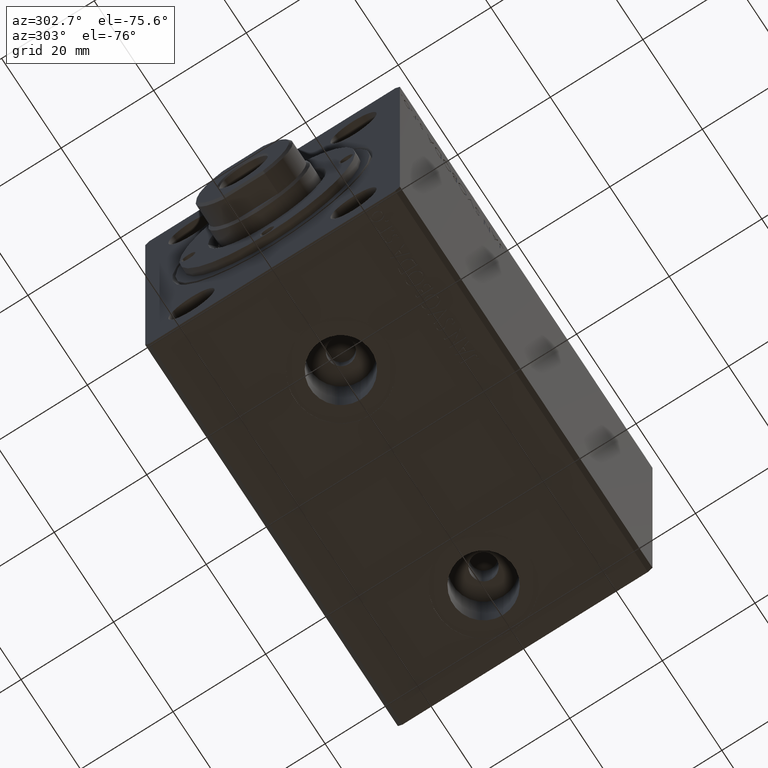
[diagram: clean part render]
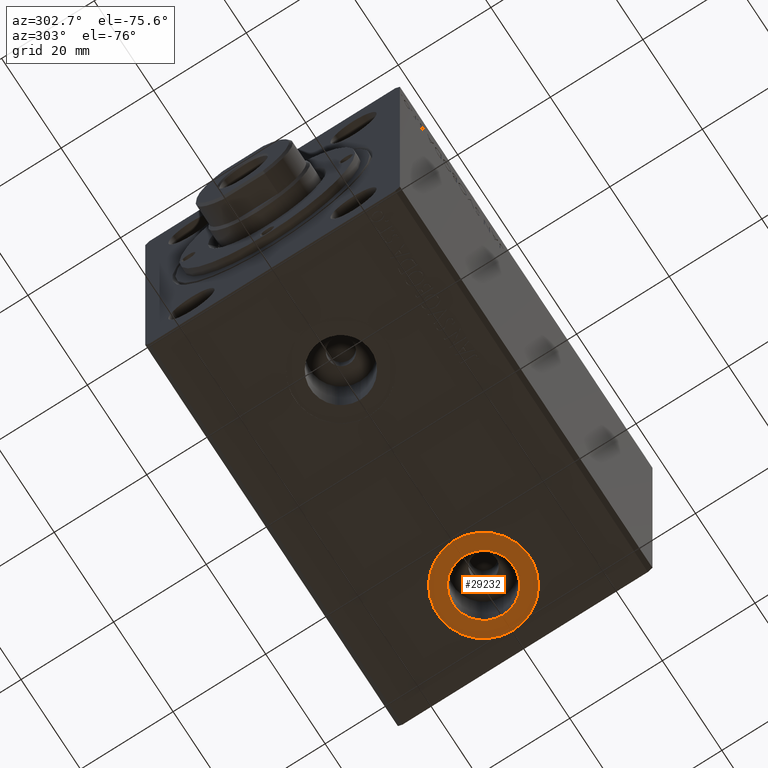
[diagram: same view with one face highlighted and labeled with its STEP entity id]
A machine part, auxiliary view. The second image highlights one B-rep face of the part: STEP entity #29232.
In plain terms, the highlighted planar face has unit normal (0, 0, -1).
Its self-contained STEP definition (entity closure, byte-faithful):
#1874 = CARTESIAN_POINT ( 'NONE',  ( 71.00000000000001421, -1.077874968157985048E-14, -37.39999999999999147 ) ) ;
#2207 = CARTESIAN_POINT ( 'NONE',  ( 61.00000000000000711, -1.077874968157985048E-14, -37.39999999999999147 ) ) ;
#3714 = DIRECTION ( 'NONE',  ( -1.000000000000000000, 0.000000000000000000, 0.000000000000000000 ) ) ;
#4960 = DIRECTION ( 'NONE',  ( -1.000000000000000000, 0.000000000000000000, -0.000000000000000000 ) ) ;
#8561 = CARTESIAN_POINT ( 'NONE',  ( 71.00000000000001421, -1.077874968157985048E-14, -37.39999999999999147 ) ) ;
#8804 = DIRECTION ( 'NONE',  ( 0.000000000000000000, 0.000000000000000000, -1.000000000000000000 ) ) ;
#9032 = DIRECTION ( 'NONE',  ( -1.000000000000000000, 0.000000000000000000, 0.000000000000000000 ) ) ;
#9654 = EDGE_CURVE ( 'NONE', #27562, #28279, #40902, .T. ) ;
#11263 = ORIENTED_EDGE ( 'NONE', *, *, #9654, .T. ) ;
#11489 = CARTESIAN_POINT ( 'NONE',  ( 71.00000000000001421, -1.077874968157985048E-14, -37.39999999999999147 ) ) ;
#12420 = CARTESIAN_POINT ( 'NONE',  ( 77.58000000000001251, -9.972932087740891440E-15, -37.39999999999999147 ) ) ;
#12512 = VERTEX_POINT ( 'NONE', #32638 ) ;
#18186 = DIRECTION ( 'NONE',  ( 0.000000000000000000, 0.000000000000000000, -1.000000000000000000 ) ) ;
#19049 = DIRECTION ( 'NONE',  ( 0.000000000000000000, 0.000000000000000000, -1.000000000000000000 ) ) ;
#19224 = CARTESIAN_POINT ( 'NONE',  ( 71.00000000000001421, -1.077874968157985048E-14, -37.39999999999999147 ) ) ;
#20089 = CARTESIAN_POINT ( 'NONE',  ( 81.00000000000000000, -9.554102882432495845E-15, -37.39999999999999147 ) ) ;
#21612 = ORIENTED_EDGE ( 'NONE', *, *, #35855, .F. ) ;
#21648 = AXIS2_PLACEMENT_3D ( 'NONE', #25979, #8804, #9032 ) ;
#22163 = DIRECTION ( 'NONE',  ( 0.000000000000000000, 0.000000000000000000, -1.000000000000000000 ) ) ;
#23085 = CIRCLE ( 'NONE', #26652, 6.580000000000002736 ) ;
#25294 = AXIS2_PLACEMENT_3D ( 'NONE', #19224, #42434, #4960 ) ;
#25979 = CARTESIAN_POINT ( 'NONE',  ( 71.00000000000001421, -1.077874968157985048E-14, -37.39999999999999147 ) ) ;
#26652 = AXIS2_PLACEMENT_3D ( 'NONE', #8561, #22163, #35782 ) ;
#27467 = CIRCLE ( 'NONE', #38150, 10.00000000000000178 ) ;
#27562 = VERTEX_POINT ( 'NONE', #20089 ) ;
#27604 = VERTEX_POINT ( 'NONE', #12420 ) ;
#28279 = VERTEX_POINT ( 'NONE', #2207 ) ;
#28558 = EDGE_LOOP ( 'NONE', ( #39482, #21612 ) ) ;
#28865 = CIRCLE ( 'NONE', #43833, 6.580000000000002736 ) ;
#29232 = ADVANCED_FACE ( 'NONE', ( #43095, #36183 ), #32384, .T. ) ;
#32384 = PLANE ( 'NONE',  #25294 ) ;
#32638 = CARTESIAN_POINT ( 'NONE',  ( 64.42000000000000171, -1.077874968157985048E-14, -37.39999999999999147 ) ) ;
#32660 = EDGE_CURVE ( 'NONE', #12512, #27604, #23085, .T. ) ;
#33908 = EDGE_LOOP ( 'NONE', ( #42396, #11263 ) ) ;
#35316 = EDGE_CURVE ( 'NONE', #28279, #27562, #27467, .T. ) ;
#35782 = DIRECTION ( 'NONE',  ( -1.000000000000000000, 0.000000000000000000, 0.000000000000000000 ) ) ;
#35855 = EDGE_CURVE ( 'NONE', #27604, #12512, #28865, .T. ) ;
#36183 = FACE_OUTER_BOUND ( 'NONE', #33908, .T. ) ;
#38150 = AXIS2_PLACEMENT_3D ( 'NONE', #1874, #19049, #43148 ) ;
#39482 = ORIENTED_EDGE ( 'NONE', *, *, #32660, .F. ) ;
#40902 = CIRCLE ( 'NONE', #21648, 10.00000000000000178 ) ;
#42396 = ORIENTED_EDGE ( 'NONE', *, *, #35316, .T. ) ;
#42434 = DIRECTION ( 'NONE',  ( 0.000000000000000000, 0.000000000000000000, -1.000000000000000000 ) ) ;
#43095 = FACE_BOUND ( 'NONE', #28558, .T. ) ;
#43148 = DIRECTION ( 'NONE',  ( -1.000000000000000000, 0.000000000000000000, 0.000000000000000000 ) ) ;
#43833 = AXIS2_PLACEMENT_3D ( 'NONE', #11489, #18186, #3714 ) ;